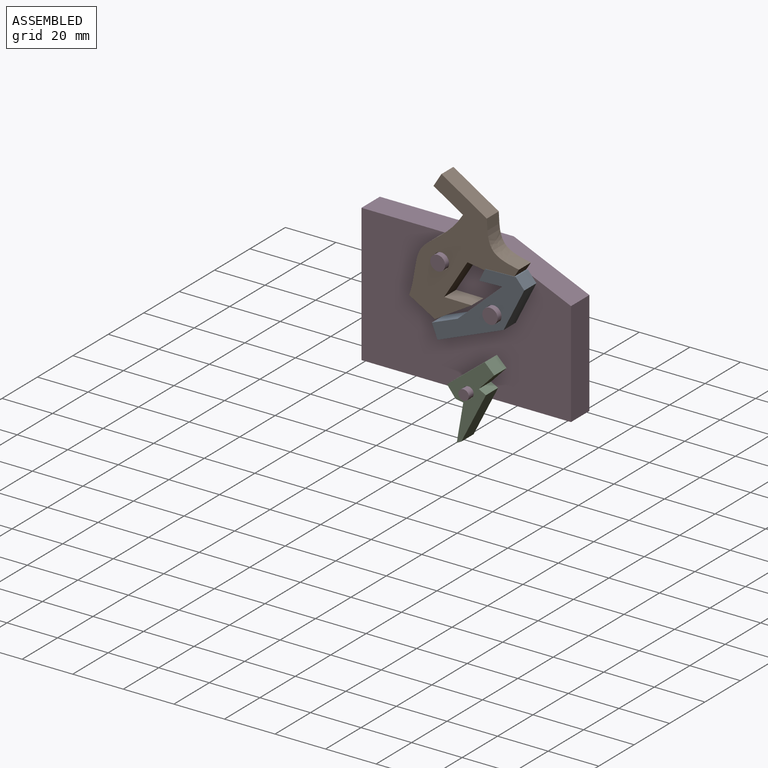
[diagram: assembled view]
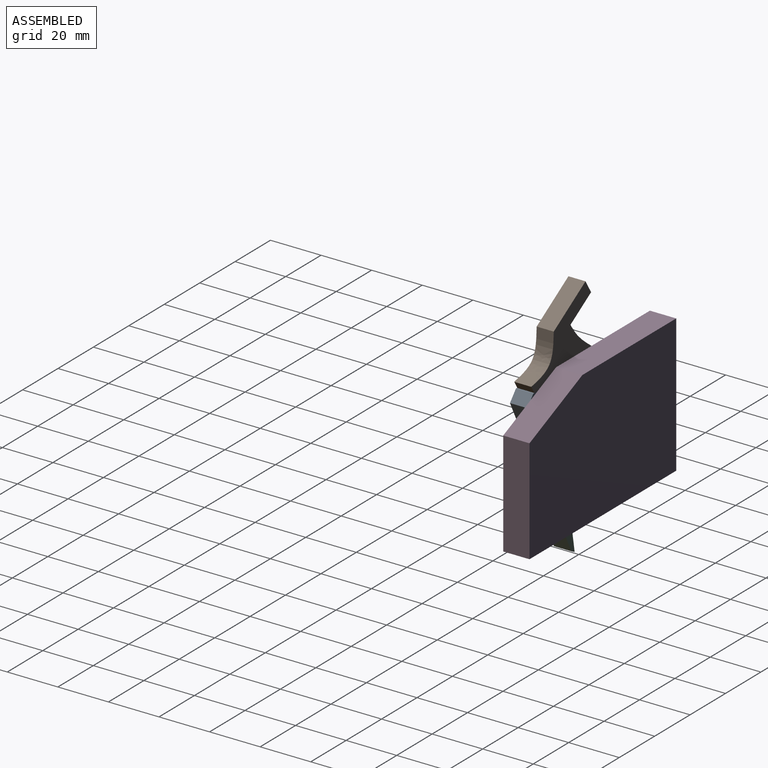
[diagram: assembled view, second angle]
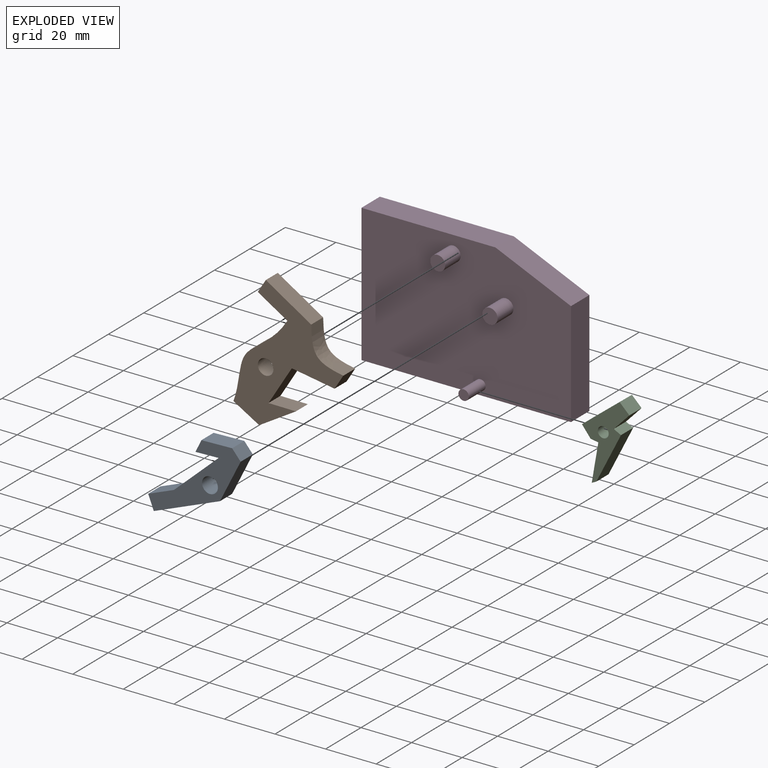
[diagram: exploded view]
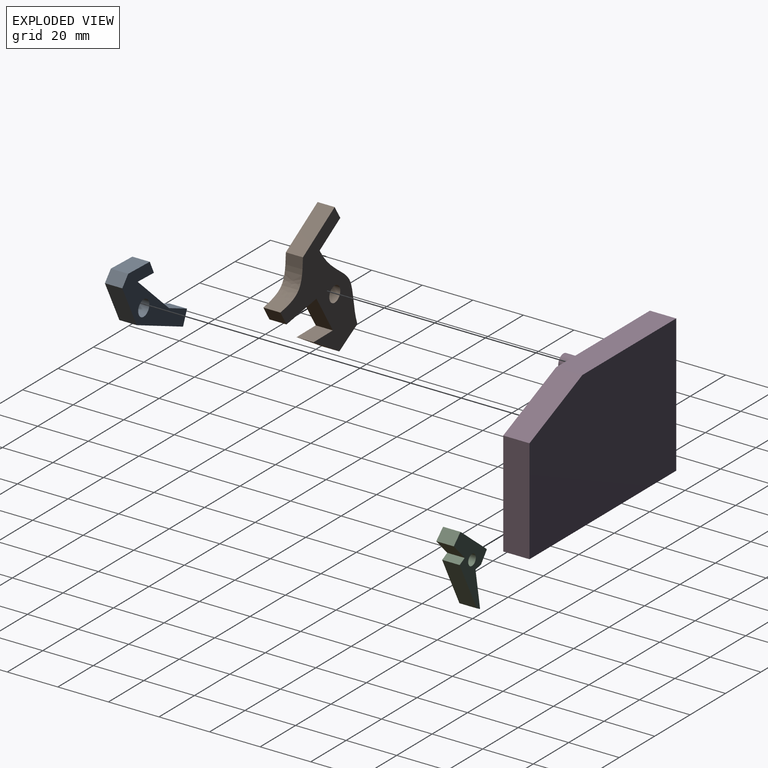
[diagram: exploded view, second angle]
ASSEMBLY  parts=4 mates=3
PART A: 12 faces, bbox 23.5x6.9x41.2 mm
  f0: plane 6.88x5.35mm, normal (-1,0,0), area 36.8mm2, adj f1,f7,f8,f9
  f1: plane 8.12x6.88mm, normal (0.47,0,-0.89), area 63.2mm2, adj f0,f2,f8,f9
  f2: plane 22.27x8.78mm, normal (-0.93,0,0.37), area 164.8mm2, adj f1,f3,f8,f9
  f3: plane 8.17x7.37mm, normal (-0.74,0,0.67), area 75.7mm2, adj f2,f4,f8,f9
  f4: plane 6.88x4.46mm, normal (-0.67,0,-0.74), area 41.3mm2, adj f3,f5,f8,f9
  f5: plane 20.93x18.88mm, normal (0.74,0,-0.67), area 194mm2, adj f4,f6,f8,f9
  f6: plane 18.21x6.88mm, normal (1,0,-0.01), area 125.3mm2, adj f5,f8,f9,f11
  f7: plane 10.77x6.88mm, normal (-0.47,0,0.89), area 83.7mm2, adj f0,f8,f9,f11
  f8: plane 41.2x23.54mm, normal (0,-1,0), area 362.1mm2, adj f0,f1,f2,f3,f4,f5,f6,f7
  f9: plane 41.2x23.54mm, normal (0,1,0), area 362.1mm2, adj f0,f1,f2,f3,f4,f5,f6,f7
  f10: cylinder r=3.14mm len=6.88mm, axis (0,-1,0), area 135.8mm2, adj f8,f9
  f11: plane 6.88x4.74mm, normal (0.4,0,0.92), area 35.6mm2, adj f6,f7,f8,f9
PART B: 14 faces, bbox 39.7x6.8x46.4 mm
  f0: plane 21.11x6.75mm, normal (0,0,1), area 142.6mm2, adj f1,f10,f11,f12
  f1: plane 6.75x5.98mm, normal (-1,0,0), area 40.4mm2, adj f0,f2,f11,f12
  f2: plane 13.72x6.75mm, normal (0,0,-1), area 92.7mm2, adj f1,f3,f11,f12
  f3: extruded ~40.44x6.75mm, area 284.8mm2, adj f2,f4,f11,f12
  f4: plane 11.78x6.75mm, normal (0.03,0,-1), area 79.6mm2, adj f3,f5,f11,f12
  f5: plane 15.15x7.69mm, normal (0.89,0,-0.45), area 114.8mm2, adj f4,f6,f11,f12
  f6: plane 9.27x6.75mm, normal (-0.52,0,0.85), area 73.4mm2, adj f5,f7,f11,f12
  f7: plane 17.52x6.75mm, normal (1,0,0), area 118.4mm2, adj f6,f8,f11,f12
  f8: plane 15.82x6.75mm, normal (0.38,0,-0.92), area 115.7mm2, adj f7,f9,f11,f12
  f9: plane 6.75x6.51mm, normal (1,0,0), area 43.9mm2, adj f8,f10,f11,f12
  f10: extruded ~18.64x8.24mm, area 152.2mm2, adj f0,f9,f11,f12
  f11: plane 46.42x39.75mm, normal (0,-1,0), area 813.3mm2, adj f0,f1,f2,f3,f4,f5,f6,f7
  f12: plane 46.42x39.75mm, normal (0,1,0), area 813.3mm2, adj f0,f1,f2,f3,f4,f5,f6,f7
  f13: cylinder r=3.09mm len=6.75mm, axis (0,-1,0), area 131.3mm2, adj f11,f12
PART C: 12 faces, bbox 17.1x6.9x33.2 mm
  f0: plane 6.91x4.39mm, normal (0.57,0,0.82), area 36.9mm2, adj f1,f8,f9,f10
  f1: plane 14.23x12.69mm, normal (-0.75,0,0.67), area 131.7mm2, adj f0,f2,f9,f10
  f2: plane 6.91x4.08mm, normal (-0.67,0,-0.75), area 37.7mm2, adj f1,f3,f9,f10
  f3: plane 6.91x3.11mm, normal (0,0,-1), area 21.5mm2, adj f2,f4,f9,f10
  f4: plane 15.34x6.91mm, normal (-1,0,0), area 106mm2, adj f3,f5,f9,f10
  f5: plane 6.91x1.64mm, normal (0.6,0,-0.8), area 14.1mm2, adj f4,f6,f9,f10
  f6: plane 20.57x6.91mm, normal (0.96,0,-0.29), area 148.7mm2, adj f5,f7,f9,f10
  f7: plane 6.91x3.06mm, normal (0.29,0,0.96), area 22.2mm2, adj f6,f8,f9,f10
  f8: plane 7.44x6.91mm, normal (0.83,0,-0.56), area 61.9mm2, adj f0,f7,f9,f10
  f9: plane 33.2x17.08mm, normal (0,-1,0), area 200.5mm2, adj f0,f1,f2,f3,f4,f5,f6,f7
  f10: plane 33.2x17.08mm, normal (0,1,0), area 200.5mm2, adj f0,f1,f2,f3,f4,f5,f6,f7
  f11: cylinder r=2.15mm len=6.91mm, axis (0,-1,0), area 93.5mm2, adj f9,f10
PART D: 13 faces, bbox 82.9x19.9x54.4 mm
  f0: plane 82.85x54.44mm, normal (0,-1,0), area 4246.9mm2, adj f2,f3,f4,f6,f8,f10,f11,f12
  f1: plane 82.85x54.44mm, normal (0,1,0), area 4316.2mm2, adj f2,f3,f10,f11,f12
  f2: plane 54.44x10.39mm, normal (-1,0,0), area 565.8mm2, adj f0,f1,f3,f10
  f3: plane 52.99x10.39mm, normal (0,0,1), area 550.8mm2, adj f0,f1,f2,f12
  f4: cylinder r=2.95mm len=8.78mm, axis (0,1,0), area 162.6mm2, adj f0,f5
  f5: plane 5.89x5.89mm, normal (0,-1,0), area 27.3mm2, adj f4
  f6: cylinder r=3.03mm len=8.95mm, axis (0,1,0), area 170.3mm2, adj f0,f7
  f7: plane 6.06x6.06mm, normal (0,-1,0), area 28.8mm2, adj f6
  f8: cylinder r=2.05mm len=9.52mm, axis (0,1,0), area 122.7mm2, adj f0,f9
  f9: plane 4.1x4.1mm, normal (0,-1,0), area 13.2mm2, adj f8
  f10: plane 82.85x10.39mm, normal (0,0,-1), area 861.2mm2, adj f0,f1,f2,f11
  f11: plane 41.44x10.39mm, normal (1,0,0), area 430.8mm2, adj f0,f1,f10,f12
  f12: plane 29.86x12.99mm, normal (0.4,0,0.92), area 338.5mm2, adj f0,f1,f3,f11
PLACE A rot(axis=(0,1,0),26deg) t=(-3.17,0,17.89)mm
PLACE B rot(axis=(0,1,0),31.8deg) t=(-12.9,0.14,13)mm
PLACE C rot(axis=(0,1,0),9.8deg) t=(2.91,0,4.38)mm
PLACE D at identity fixed
MATE revolute D.f8 <-> C.f11  axis (0,1,0) through (27.11,0.14,-14.84)mm
MATE revolute D.f4 <-> B.f13  axis (0,1,0) through (16.35,0.14,29.16)mm
MATE revolute D.f6 <-> A.f10  axis (0,1,0) through (37.13,0.14,15.8)mm
